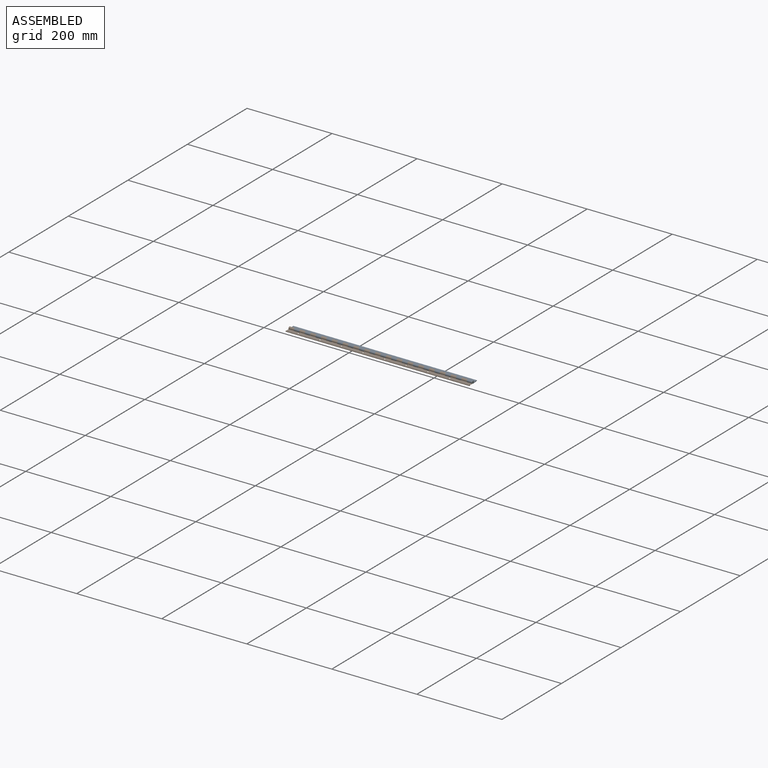
[diagram: assembled view]
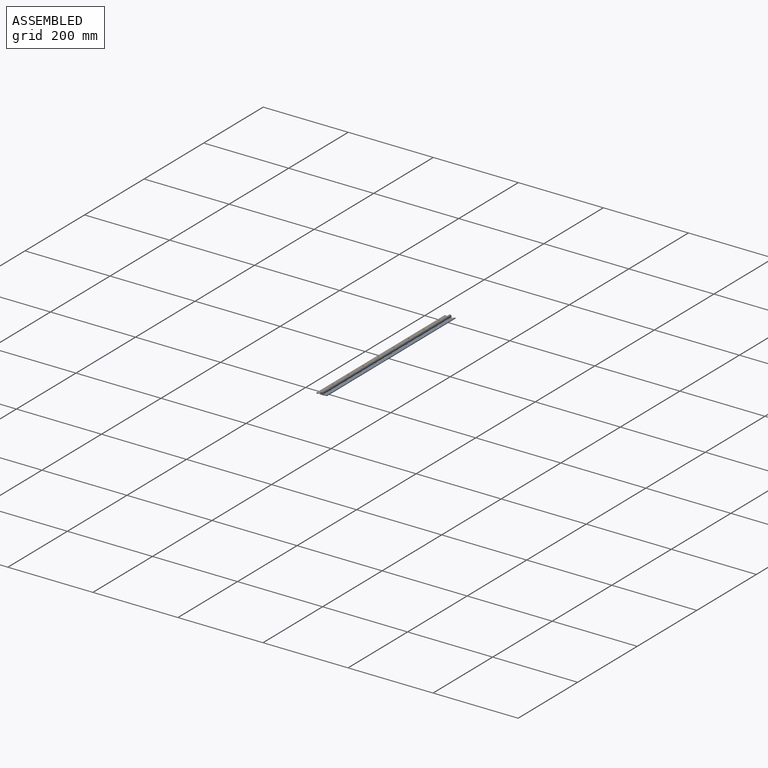
[diagram: assembled view, second angle]
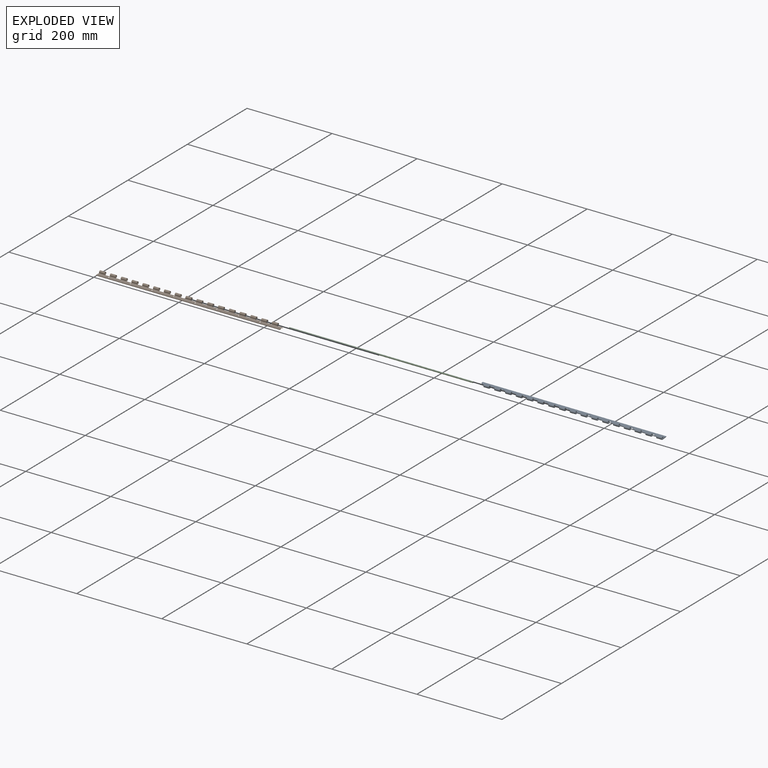
[diagram: exploded view]
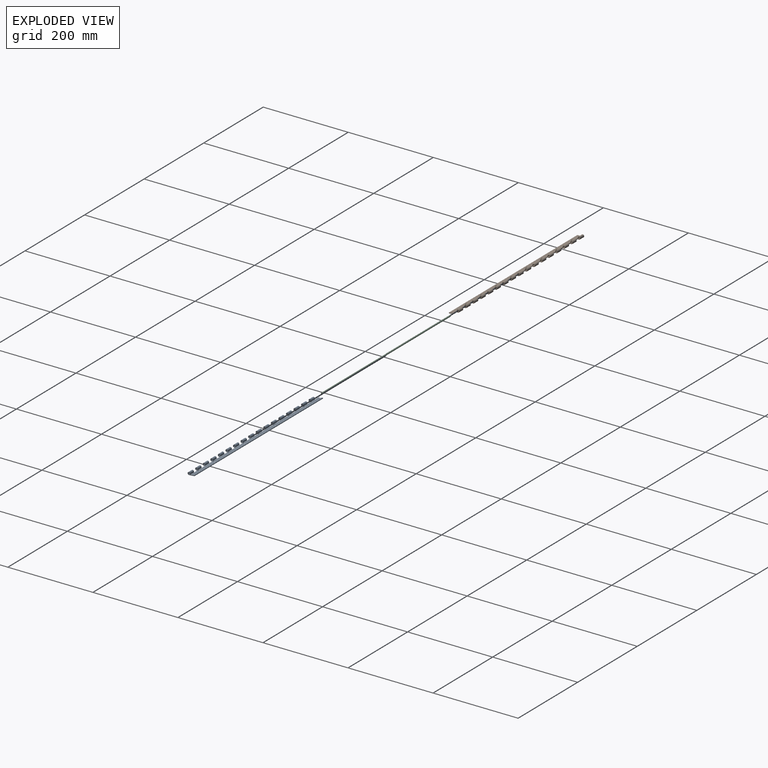
[diagram: exploded view, second angle]
ASSEMBLY  parts=3 mates=2
PART A: 116 faces, bbox 431.8x15.8x6.2 mm
  f0: plane 1.38x1.2mm, normal (1,0,0), area 0.8mm2, adj f2,f36,f115
  f1: plane 4.44x1.52mm, normal (1,0,0), area 5.8mm2, adj f35,f36,f70,f115
  f2: plane 12.7x1.53mm, normal (0,1,0), area 19.3mm2, adj f0,f35,f36,f74,f115
  f3: plane 12.7x1.53mm, normal (0,1,0), area 19.3mm2, adj f4,f35,f36,f78,f114
  f4: plane 6.35x6.22mm, normal (-1,0,0), area 23.7mm2, adj f3,f33,f35,f36,f51,f67,f114
  f5: plane 12.7x1.53mm, normal (0,1,0), area 19.3mm2, adj f6,f35,f36,f82,f113
  f6: plane 6.35x6.22mm, normal (-1,0,0), area 23.7mm2, adj f5,f31,f35,f36,f49,f65,f113
  f7: plane 12.7x1.53mm, normal (0,1,0), area 19.3mm2, adj f8,f35,f36,f86,f112
  f8: plane 6.35x6.22mm, normal (-1,0,0), area 23.7mm2, adj f7,f29,f35,f36,f47,f63,f112
  f9: plane 12.7x1.53mm, normal (0,1,0), area 19.3mm2, adj f10,f35,f36,f90,f111
  f10: plane 6.35x6.22mm, normal (-1,0,0), area 23.7mm2, adj f9,f27,f35,f36,f45,f61,f111
  f11: plane 12.7x1.53mm, normal (0,1,0), area 19.3mm2, adj f12,f35,f36,f94,f110
  f12: plane 6.35x6.22mm, normal (-1,0,0), area 23.7mm2, adj f11,f25,f35,f36,f43,f59,f110
  f13: plane 12.7x1.53mm, normal (0,1,0), area 19.3mm2, adj f14,f35,f36,f98,f109
  f14: plane 6.35x6.22mm, normal (-1,0,0), area 23.7mm2, adj f13,f23,f35,f36,f41,f57,f109
  f15: plane 12.7x1.53mm, normal (0,1,0), area 19.3mm2, adj f16,f35,f36,f102,f108
  f16: plane 6.35x6.22mm, normal (-1,0,0), area 23.7mm2, adj f15,f21,f35,f36,f39,f55,f108
  f17: plane 12.7x1.53mm, normal (0,1,0), area 19.3mm2, adj f18,f35,f36,f106,f107
  f18: plane 6.35x6.22mm, normal (-1,0,0), area 23.7mm2, adj f17,f19,f35,f36,f37,f53,f107
  f19: cylinder r=1.59mm len=12.7mm, axis (-1,0,0), area 105.5mm2, adj f18,f35,f53,f104
  f20: cylinder r=1.59mm len=12.7mm, axis (-1,0,0), area 105.5mm2, adj f35,f54,f102,f105
  f21: cylinder r=1.59mm len=12.7mm, axis (-1,0,0), area 105.5mm2, adj f16,f35,f55,f100
  f22: cylinder r=1.59mm len=12.7mm, axis (-1,0,0), area 105.5mm2, adj f35,f56,f98,f101
  f23: cylinder r=1.59mm len=12.7mm, axis (-1,0,0), area 105.5mm2, adj f14,f35,f57,f96
  f24: cylinder r=1.59mm len=12.7mm, axis (-1,0,0), area 105.5mm2, adj f35,f58,f94,f97
  f25: cylinder r=1.59mm len=12.7mm, axis (-1,0,0), area 105.5mm2, adj f12,f35,f59,f92
  f26: cylinder r=1.59mm len=12.7mm, axis (-1,0,0), area 105.5mm2, adj f35,f60,f90,f93
  f27: cylinder r=1.59mm len=12.7mm, axis (-1,0,0), area 105.5mm2, adj f10,f35,f61,f88
  f28: cylinder r=1.59mm len=12.7mm, axis (-1,0,0), area 105.5mm2, adj f35,f62,f86,f89
  f29: cylinder r=1.59mm len=12.7mm, axis (-1,0,0), area 105.5mm2, adj f8,f35,f63,f84
  f30: cylinder r=1.59mm len=12.7mm, axis (-1,0,0), area 105.5mm2, adj f35,f64,f82,f85
  f31: cylinder r=1.59mm len=12.7mm, axis (-1,0,0), area 105.5mm2, adj f6,f35,f65,f80
  f32: cylinder r=1.59mm len=12.7mm, axis (-1,0,0), area 105.5mm2, adj f35,f66,f78,f81
  f33: cylinder r=1.59mm len=12.7mm, axis (-1,0,0), area 105.5mm2, adj f4,f35,f67,f76
  f34: cylinder r=1.59mm len=12.7mm, axis (-1,0,0), area 105.5mm2, adj f35,f68,f74,f77
  f35: plane 431.8x12.7mm, normal (0,0,1), area 4505.3mm2, adj f1,f2,f3,f4,f5,f6,f7,f8
  f36: plane 431.8x12.7mm, normal (0,0,-1), area 4686.9mm2, adj f0,f1,f2,f3,f4,f5,f6,f7
  f37: cylinder r=3.11mm len=12.7mm, axis (-1,0,0), area 206.7mm2, adj f18,f36,f53,f104
  f38: cylinder r=3.11mm len=12.7mm, axis (-1,0,0), area 206.7mm2, adj f36,f54,f102,f105
  f39: cylinder r=3.11mm len=12.7mm, axis (-1,0,0), area 206.7mm2, adj f16,f36,f55,f100
  f40: cylinder r=3.11mm len=12.7mm, axis (-1,0,0), area 206.7mm2, adj f36,f56,f98,f101
  f41: cylinder r=3.11mm len=12.7mm, axis (-1,0,0), area 206.7mm2, adj f14,f36,f57,f96
  f42: cylinder r=3.11mm len=12.7mm, axis (-1,0,0), area 206.7mm2, adj f36,f58,f94,f97
  f43: cylinder r=3.11mm len=12.7mm, axis (-1,0,0), area 206.7mm2, adj f12,f36,f59,f92
  f44: cylinder r=3.11mm len=12.7mm, axis (-1,0,0), area 206.7mm2, adj f36,f60,f90,f93
  f45: cylinder r=3.11mm len=12.7mm, axis (-1,0,0), area 206.7mm2, adj f10,f36,f61,f88
  f46: cylinder r=3.11mm len=12.7mm, axis (-1,0,0), area 206.7mm2, adj f36,f62,f86,f89
  f47: cylinder r=3.11mm len=12.7mm, axis (-1,0,0), area 206.7mm2, adj f8,f36,f63,f84
  f48: cylinder r=3.11mm len=12.7mm, axis (-1,0,0), area 206.7mm2, adj f36,f64,f82,f85
  f49: cylinder r=3.11mm len=12.7mm, axis (-1,0,0), area 206.7mm2, adj f6,f36,f65,f80
  f50: cylinder r=3.11mm len=12.7mm, axis (-1,0,0), area 206.7mm2, adj f36,f66,f78,f81
  f51: cylinder r=3.11mm len=12.7mm, axis (-1,0,0), area 206.7mm2, adj f4,f36,f67,f76
  f52: cylinder r=3.11mm len=12.7mm, axis (-1,0,0), area 206.7mm2, adj f36,f68,f74,f77
  f53: plane 12.7x1.32mm, normal (0,0.5,-0.87), area 19.4mm2, adj f18,f19,f37,f104
  f54: plane 12.7x1.32mm, normal (0,0.5,-0.87), area 19.4mm2, adj f20,f38,f102,f105
  f55: plane 12.7x1.32mm, normal (0,0.5,-0.87), area 19.4mm2, adj f16,f21,f39,f100
  f56: plane 12.7x1.32mm, normal (0,0.5,-0.87), area 19.4mm2, adj f22,f40,f98,f101
  f57: plane 12.7x1.32mm, normal (0,0.5,-0.87), area 19.4mm2, adj f14,f23,f41,f96
  f58: plane 12.7x1.32mm, normal (0,0.5,-0.87), area 19.4mm2, adj f24,f42,f94,f97
  f59: plane 12.7x1.32mm, normal (0,0.5,-0.87), area 19.4mm2, adj f12,f25,f43,f92
  f60: plane 12.7x1.32mm, normal (0,0.5,-0.87), area 19.4mm2, adj f26,f44,f90,f93
  f61: plane 12.7x1.32mm, normal (0,0.5,-0.87), area 19.4mm2, adj f10,f27,f45,f88
  f62: plane 12.7x1.32mm, normal (0,0.5,-0.87), area 19.4mm2, adj f28,f46,f86,f89
  f63: plane 12.7x1.32mm, normal (0,0.5,-0.87), area 19.4mm2, adj f8,f29,f47,f84
  f64: plane 12.7x1.32mm, normal (0,0.5,-0.87), area 19.4mm2, adj f30,f48,f82,f85
  f65: plane 12.7x1.32mm, normal (0,0.5,-0.87), area 19.4mm2, adj f6,f31,f49,f80
  f66: plane 12.7x1.32mm, normal (0,0.5,-0.87), area 19.4mm2, adj f32,f50,f78,f81
  f67: plane 12.7x1.32mm, normal (0,0.5,-0.87), area 19.4mm2, adj f4,f33,f51,f76
  f68: plane 12.7x1.32mm, normal (0,0.5,-0.87), area 19.4mm2, adj f34,f52,f74,f77
  f69: cylinder r=1.59mm len=12.7mm, axis (-1,0,0), area 105.5mm2, adj f35,f72,f73,f106
  f70: plane 431.8x1.52mm, normal (0,-1,0), area 658.1mm2, adj f1,f35,f36,f73
  f71: cylinder r=3.11mm len=12.7mm, axis (-1,0,0), area 206.7mm2, adj f36,f72,f73,f106
  f72: plane 12.7x1.32mm, normal (0,0.5,-0.87), area 19.4mm2, adj f69,f71,f73,f106
  f73: plane 15.81x6.22mm, normal (-1,0,0), area 38.1mm2, adj f35,f36,f69,f70,f71,f72
  f74: plane 6.35x6.22mm, normal (1,0,0), area 23.7mm2, adj f2,f34,f35,f36,f52,f68
  f75: plane 12.7x1.52mm, normal (0,1,0), area 19.4mm2, adj f35,f36,f76,f77
  f76: plane 6.35x6.22mm, normal (1,0,0), area 23.7mm2, adj f33,f35,f36,f51,f67,f75
  f77: plane 6.35x6.22mm, normal (-1,0,0), area 23.7mm2, adj f34,f35,f36,f52,f68,f75
  f78: plane 6.35x6.22mm, normal (1,0,0), area 23.7mm2, adj f3,f32,f35,f36,f50,f66
  f79: plane 12.7x1.52mm, normal (0,1,0), area 19.4mm2, adj f35,f36,f80,f81
  f80: plane 6.35x6.22mm, normal (1,0,0), area 23.7mm2, adj f31,f35,f36,f49,f65,f79
  f81: plane 6.35x6.22mm, normal (-1,0,0), area 23.7mm2, adj f32,f35,f36,f50,f66,f79
  f82: plane 6.35x6.22mm, normal (1,0,0), area 23.7mm2, adj f5,f30,f35,f36,f48,f64
  f83: plane 12.7x1.52mm, normal (0,1,0), area 19.4mm2, adj f35,f36,f84,f85
  f84: plane 6.35x6.22mm, normal (1,0,0), area 23.7mm2, adj f29,f35,f36,f47,f63,f83
  f85: plane 6.35x6.22mm, normal (-1,0,0), area 23.7mm2, adj f30,f35,f36,f48,f64,f83
  f86: plane 6.35x6.22mm, normal (1,0,0), area 23.7mm2, adj f7,f28,f35,f36,f46,f62
  f87: plane 12.7x1.52mm, normal (0,1,0), area 19.4mm2, adj f35,f36,f88,f89
  f88: plane 6.35x6.22mm, normal (1,0,0), area 23.7mm2, adj f27,f35,f36,f45,f61,f87
  f89: plane 6.35x6.22mm, normal (-1,0,0), area 23.7mm2, adj f28,f35,f36,f46,f62,f87
  f90: plane 6.35x6.22mm, normal (1,0,0), area 23.7mm2, adj f9,f26,f35,f36,f44,f60
  f91: plane 12.7x1.52mm, normal (0,1,0), area 19.4mm2, adj f35,f36,f92,f93
  f92: plane 6.35x6.22mm, normal (1,0,0), area 23.7mm2, adj f25,f35,f36,f43,f59,f91
  f93: plane 6.35x6.22mm, normal (-1,0,0), area 23.7mm2, adj f26,f35,f36,f44,f60,f91
  f94: plane 6.35x6.22mm, normal (1,0,0), area 23.7mm2, adj f11,f24,f35,f36,f42,f58
  f95: plane 12.7x1.52mm, normal (0,1,0), area 19.4mm2, adj f35,f36,f96,f97
  f96: plane 6.35x6.22mm, normal (1,0,0), area 23.7mm2, adj f23,f35,f36,f41,f57,f95
  f97: plane 6.35x6.22mm, normal (-1,0,0), area 23.7mm2, adj f24,f35,f36,f42,f58,f95
  f98: plane 6.35x6.22mm, normal (1,0,0), area 23.7mm2, adj f13,f22,f35,f36,f40,f56
  f99: plane 12.7x1.52mm, normal (0,1,0), area 19.4mm2, adj f35,f36,f100,f101
  f100: plane 6.35x6.22mm, normal (1,0,0), area 23.7mm2, adj f21,f35,f36,f39,f55,f99
  f101: plane 6.35x6.22mm, normal (-1,0,0), area 23.7mm2, adj f22,f35,f36,f40,f56,f99
  f102: plane 6.35x6.22mm, normal (1,0,0), area 23.7mm2, adj f15,f20,f35,f36,f38,f54
  f103: plane 12.7x1.52mm, normal (0,1,0), area 19.4mm2, adj f35,f36,f104,f105
  f104: plane 6.35x6.22mm, normal (1,0,0), area 23.7mm2, adj f19,f35,f36,f37,f53,f103
  f105: plane 6.35x6.22mm, normal (-1,0,0), area 23.7mm2, adj f20,f35,f36,f38,f54,f103
  f106: plane 6.35x6.22mm, normal (1,0,0), area 23.7mm2, adj f17,f35,f36,f69,f71,f72
  f107: cone r=1.47mm half-angle=41deg, axis (0,0,1), area 32.6mm2, adj f17,f18,f35,f36
  f108: cone r=1.47mm half-angle=41deg, axis (0,0,1), area 32.6mm2, adj f15,f16,f35,f36
  f109: cone r=1.47mm half-angle=41deg, axis (0,0,1), area 32.6mm2, adj f13,f14,f35,f36
  f110: cone r=1.47mm half-angle=41deg, axis (0,0,1), area 32.6mm2, adj f11,f12,f35,f36
  f111: cone r=1.47mm half-angle=41deg, axis (0,0,1), area 32.6mm2, adj f9,f10,f35,f36
  f112: cone r=1.47mm half-angle=41deg, axis (0,0,1), area 32.6mm2, adj f7,f8,f35,f36
  f113: cone r=1.47mm half-angle=41deg, axis (0,0,1), area 32.6mm2, adj f5,f6,f35,f36
  f114: cone r=1.47mm half-angle=41deg, axis (0,0,1), area 32.6mm2, adj f3,f4,f35,f36
  f115: cone r=1.47mm half-angle=41deg, axis (0,0,1), area 16.2mm2, adj f0,f1,f2,f35,f36
PART B: same geometry as A
PART C: 3 faces, bbox 431.8x3.2x3.2 mm
  f0: plane 3.18x3.18mm, normal (1,0,0), area 7.9mm2, adj f1
  f1: cylinder r=1.59mm len=431.8mm, axis (-1,0,0), area 4307mm2, adj f0,f2
  f2: plane 3.18x3.18mm, normal (-1,0,0), area 7.9mm2, adj f1
PLACE A rot(axis=(0,-0.04,1),180deg) t=(431.8,0,0)mm
PLACE B at identity
PLACE C at identity
MATE revolute B.f19 <-> C.f1  axis (-1,0,0) through (0,0,0)mm
MATE revolute A.f19 <-> C.f1  axis (1,0,0) through (431.8,0,0)mm
